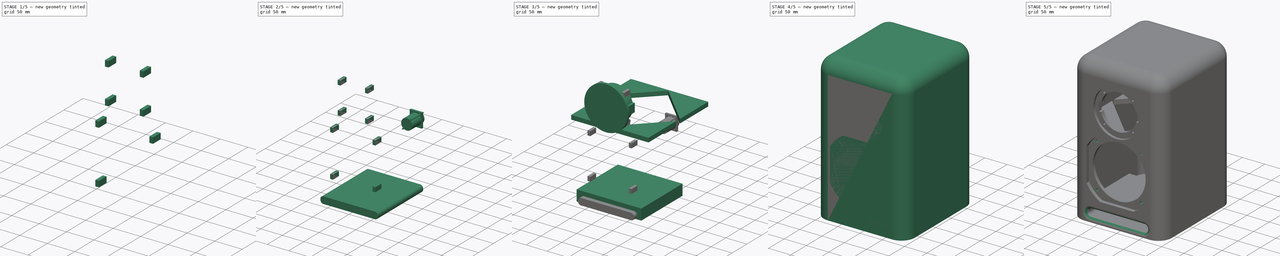
[diagram: build sequence overview — one tinted view per stage of 5, left to right]
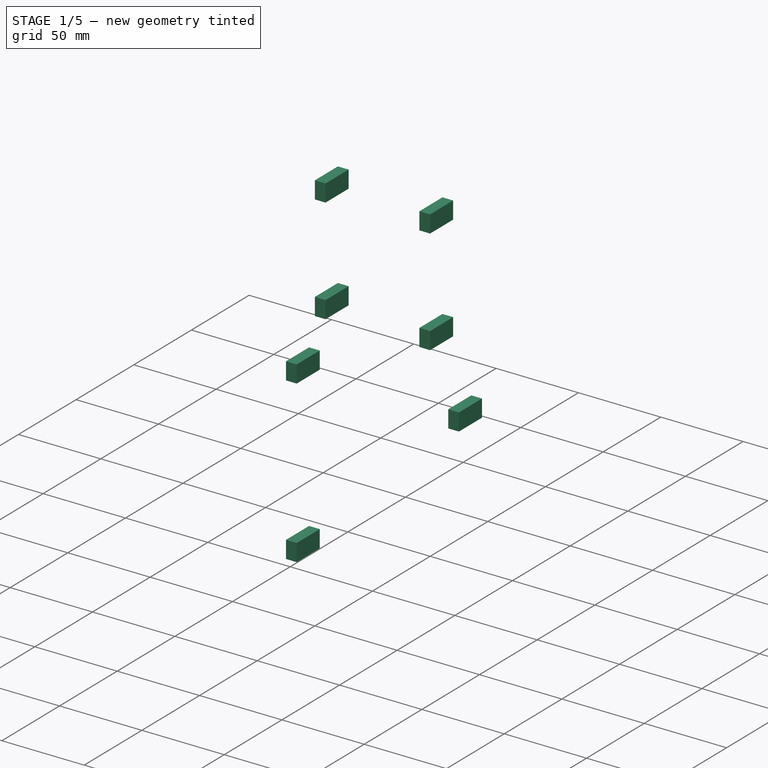
[diagram: stage 1 of 5 — iso view after this stage's code; geometry added in this stage tinted green]
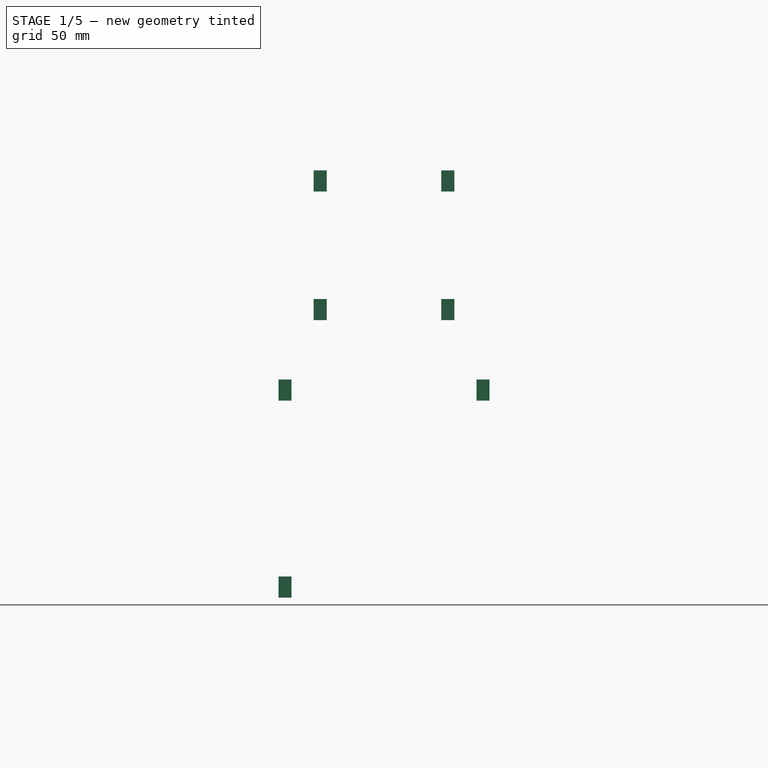
[diagram: stage 1 of 5 — front view after this stage's code; geometry added in this stage tinted green]
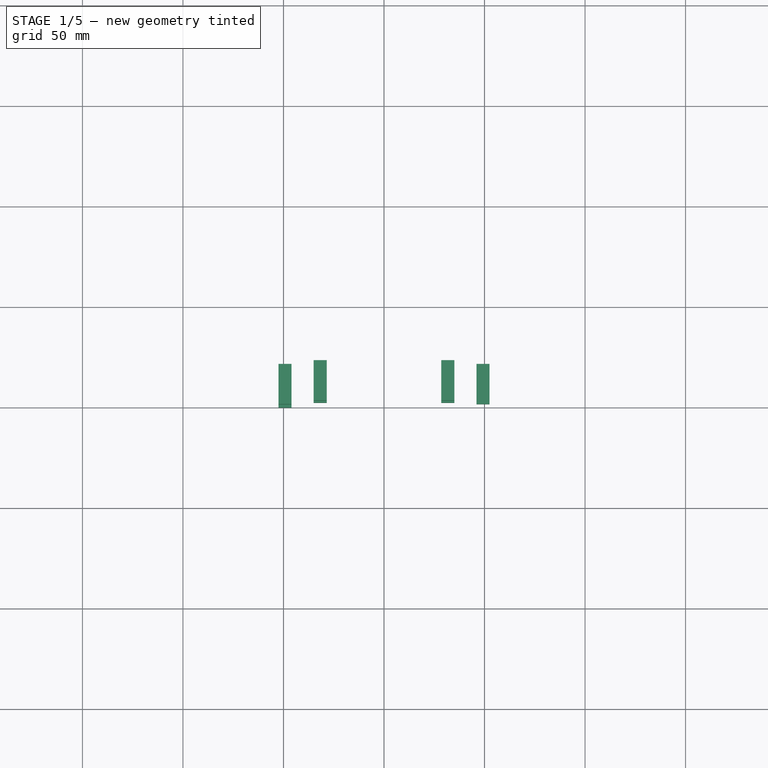
[diagram: stage 1 of 5 — top view after this stage's code; geometry added in this stage tinted green]
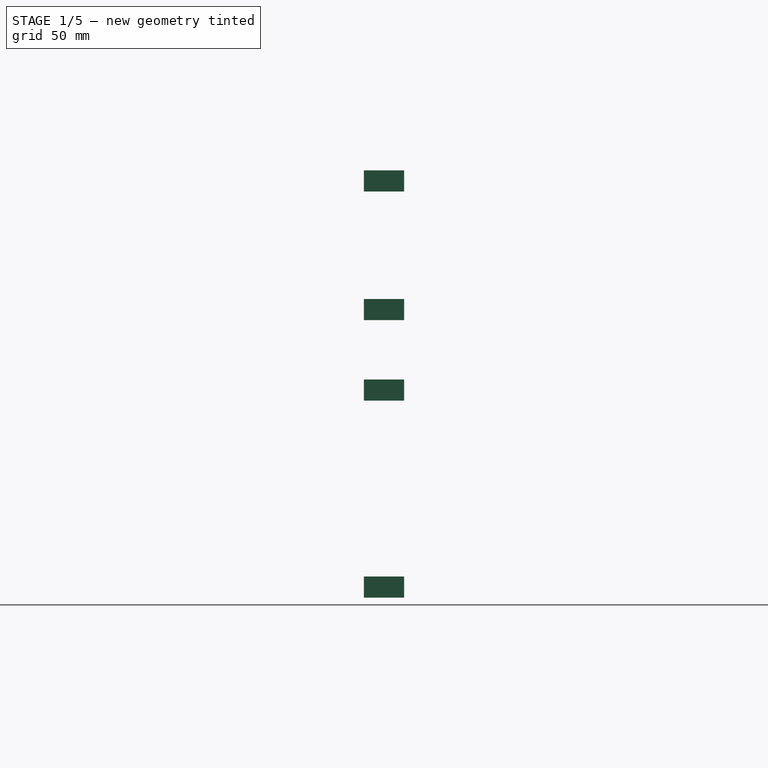
[diagram: stage 1 of 5 — right view after this stage's code; geometry added in this stage tinted green]
FCSTD DOCUMENT  (FreeCAD 0.18R16110 (Git))
Label: SM5-rev1
License: All rights reserved
LicenseURL: http://en.wikipedia.org/wiki/All_rights_reserved
objects: Part::Box×14, Sketcher::SketchObject×8, PartDesign::Pad×6, Part::Cut×6, Part::Fillet×4, Part::MultiFuse×4, PartDesign::Body×2, Part::Extrusion×2
note: 52 computed .brp shape members not serialized (recipe doc carries the construction recipe); baked Part::Feature solids carry a one-line shape summary decoded from their .brp

FEATURE [Part::Box] Box007  label="Cubo005"
  AttacherType = Attacher::AttachEngine3D
  Height = 10.5
  Length = 6.5
  Placement = pos=(46,0,158) rot=(0,0,1;0rad)
  Width = 20
FEATURE [Part::Box] Box008  label="Cubo006"
  AttacherType = Attacher::AttachEngine3D
  Height = 10.5
  Length = 6.5
  Placement = pos=(-52.5,0,60) rot=(0,0,1;0rad)
  Width = 20
FEATURE [Part::Box] Box009  label="Cubo007"
  AttacherType = Attacher::AttachEngine3D
  Height = 10.5
  Length = 6.5
  Placement = pos=(-52.5,0,158) rot=(0,0,1;0rad)
  Width = 20
FEATURE [Part::Box] Box010  label="Cubo008"
  AttacherType = Attacher::AttachEngine3D
  Height = 10.5
  Length = 6.5
  Placement = pos=(28.5,0,198) rot=(0,0,1;0rad)
  Width = 20
FEATURE [Part::Box] Box011  label="Cubo009"
  AttacherType = Attacher::AttachEngine3D
  Height = 10.5
  Length = 6.5
  Placement = pos=(28.5,0,262) rot=(0,0,1;0rad)
  Width = 20
FEATURE [Part::Box] Box012  label="Cubo010"
  AttacherType = Attacher::AttachEngine3D
  Height = 10.5
  Length = 6.5
  Placement = pos=(-35,0,262) rot=(0,0,1;0rad)
  Width = 20
FEATURE [Part::Box] Box013  label="Cubo011"
  AttacherType = Attacher::AttachEngine3D
  Height = 10.5
  Length = 6.5
  Placement = pos=(-35,0,198) rot=(0,0,1;0rad)
  Width = 20
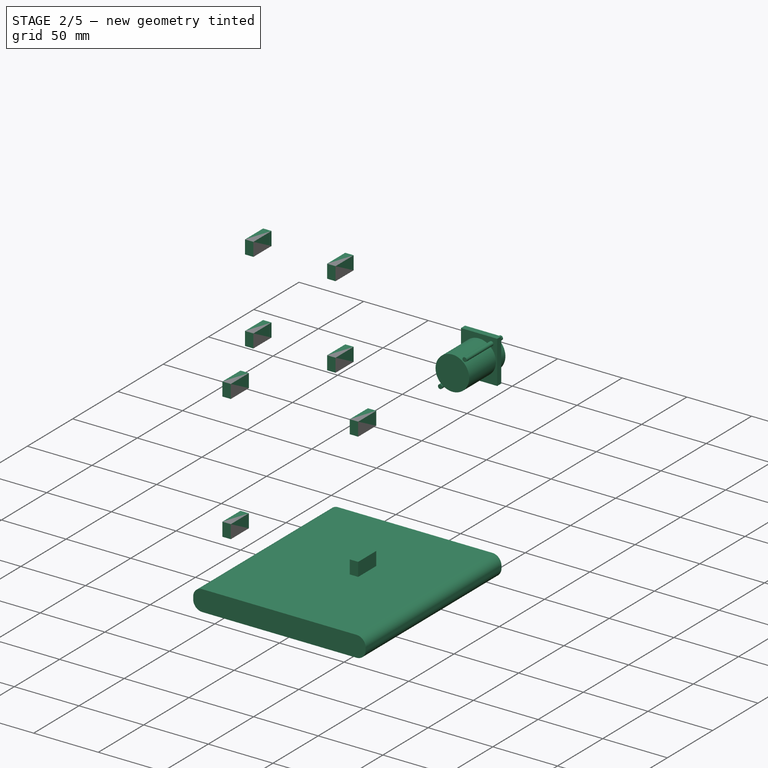
[diagram: stage 2 of 5 — iso view after this stage's code; geometry added in this stage tinted green]
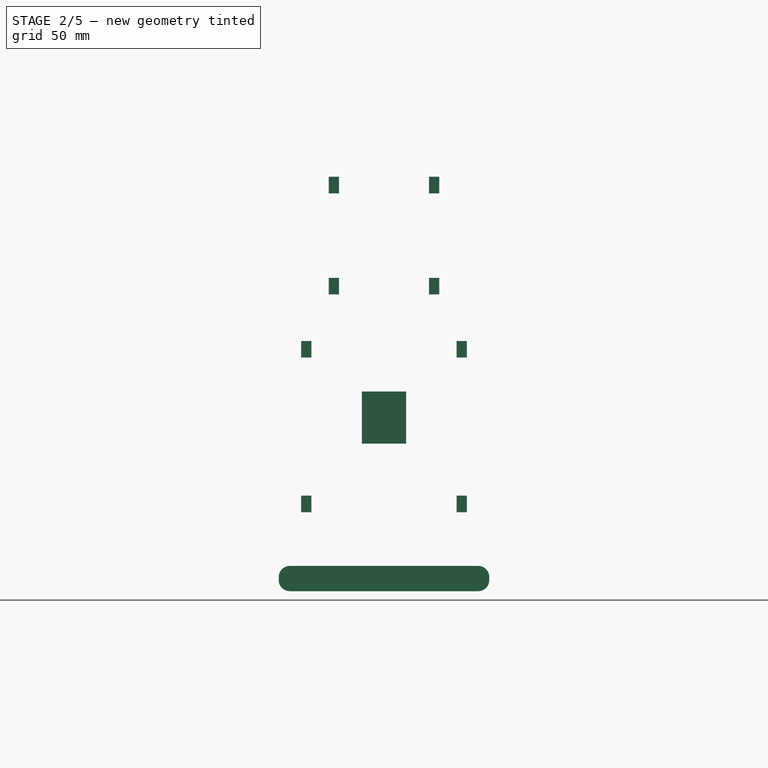
[diagram: stage 2 of 5 — front view after this stage's code; geometry added in this stage tinted green]
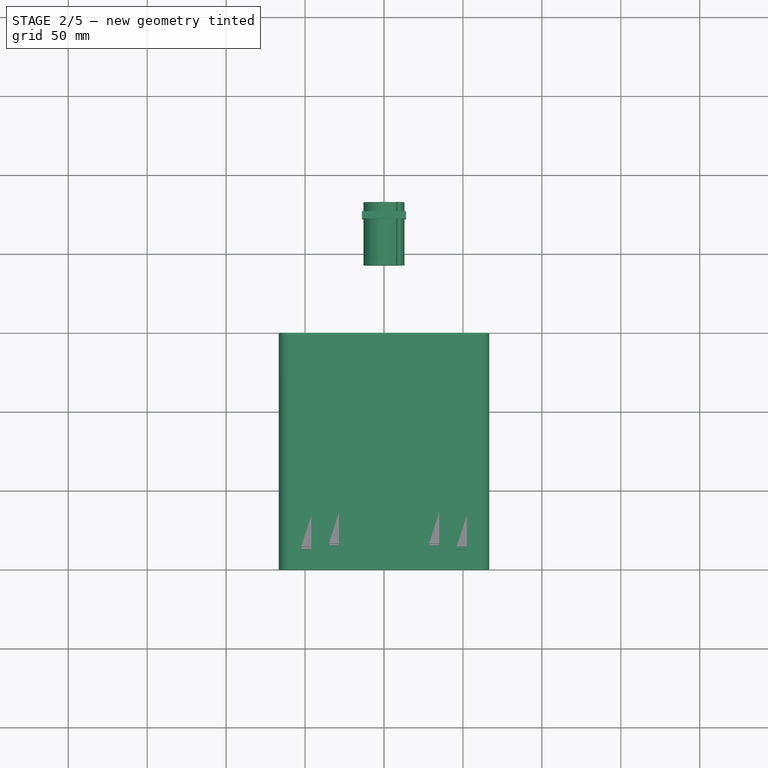
[diagram: stage 2 of 5 — top view after this stage's code; geometry added in this stage tinted green]
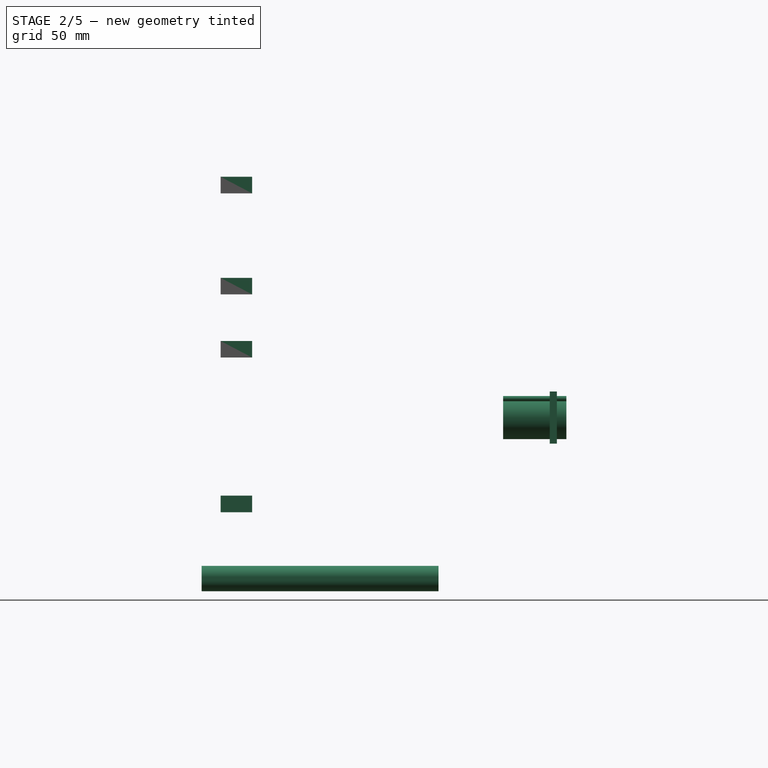
[diagram: stage 2 of 5 — right view after this stage's code; geometry added in this stage tinted green]
FEATURE [Part::Box] Box002  label="AgujeroPuerto"
  AttacherType = Attacher::AttachEngine3D
  Height = 16
  Length = 133.36
  Placement = pos=(-66.68,0,10) rot=(0,0,1;0rad)
  Width = 150
FEATURE [Part::Fillet] Fillet002  label="Agujero puerto"
  Base = -> Box002
  Edges = 4 edges r=7: [Edge2,Edge4,Edge6,Edge8]
FEATURE [Sketcher::SketchObject] Sketch007
  MapMode = 5
  Placement = pos=(0,0,0) rot=(1,0,0;1.5708rad)
  sketch-geometry (3):
    g0: Circle CenterX=0 CenterY=120 CenterZ=0 NormalX=0 NormalY=0 NormalZ=1 AngleXU=0 Radius=13
    g1: Circle CenterX=9.5 CenterY=132 CenterZ=0 NormalX=0 NormalY=0 NormalZ=1 AngleXU=0 Radius=1.65
    g2: Circle CenterX=-9.5 CenterY=108 CenterZ=0 NormalX=0 NormalY=0 NormalZ=1 AngleXU=0 Radius=1.65
  constraints (9):
    c: PointOnObject(g0,g-2)
    c: Diameter(g0) = 26
    c: DistanceY(g-1,g0) = 120
    c: DistanceX(g-2,g1) = 9.5
    c: DistanceX(g-2,g2) = -9.5
    c: DistanceY(g-1,g2) = 108
    c: Equal(g2,g1)
    c: Diameter(g2) = 3.3
    c: DistanceY(g-1,g1) = 132
FEATURE [Part::Extrusion] Extrude
  Base = -> Sketch007
  Dir = (0,-1,2e-16)
  DirMode = 2
  FaceMakerClass = Part::FaceMakerBullseye
  LengthFwd = 40
  LengthRev = 0
  Placement = pos=(0,226,0) rot=(0,0,1;0rad)
  Solid = true
  Symmetric = false
FEATURE [Sketcher::SketchObject] Sketch008
  MapMode = 5
  Placement = pos=(0,0,0) rot=(1,0,0;1.5708rad)
  sketch-geometry (4):
    g0: LineSegment StartX=-14 StartY=136.5 StartZ=0 EndX=14 EndY=136.5 EndZ=0
    g1: LineSegment StartX=14 StartY=136.5 StartZ=0 EndX=14 EndY=103.5 EndZ=0
    g2: LineSegment StartX=14 StartY=103.5 StartZ=0 EndX=-14 EndY=103.5 EndZ=0
    g3: LineSegment StartX=-14 StartY=103.5 StartZ=0 EndX=-14 EndY=136.5 EndZ=0
  constraints (11):
    c: Coincident(g0,g1)
    c: Coincident(g1,g2)
    c: Coincident(g2,g3)
    c: Coincident(g3,g0)
    c: Horizontal(g0)
    c: Vertical(g1)
    c: Vertical(g3)
    c: Symmetric(g2,g1,g-2)
    c: Distance(g1) = 33
    c: Distance(g2) = 28
    c: DistanceY(g-1,g2) = 103.5
FEATURE [Part::Extrusion] Extrude001
  Base = -> Sketch008
  Dir = (0,-1,2e-16)
  DirMode = 2
  FaceMakerClass = Part::FaceMakerBullseye
  LengthFwd = 4.5
  LengthRev = 0
  Placement = pos=(0,220,0) rot=(0,0,1;0rad)
  Solid = true
  Symmetric = false
FEATURE [Part::MultiFuse] Fusion  label="Conector"
  Placement = pos=(0,5,0) rot=(0,0,1;0rad)
  Shapes = -> [Extrude,Extrude001]
FEATURE [Part::Box] Box006  label="Cubo004"
  AttacherType = Attacher::AttachEngine3D
  Height = 10.5
  Length = 6.5
  Placement = pos=(46,0,60) rot=(0,0,1;0rad)
  Width = 20
FEATURE [Part::MultiFuse] Fusion003  label="Tuercas"
  Placement = pos=(0,12,0) rot=(0,0,1;0rad)
  Shapes = -> [Box006,Box008,Box007,Box009,Box010,Box011,Box013,Box012]
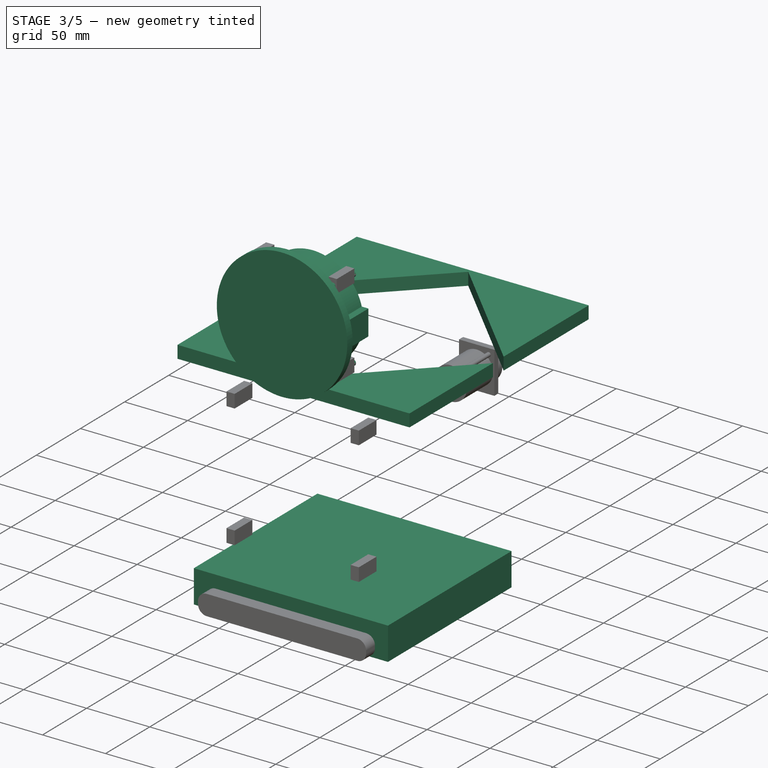
[diagram: stage 3 of 5 — iso view after this stage's code; geometry added in this stage tinted green]
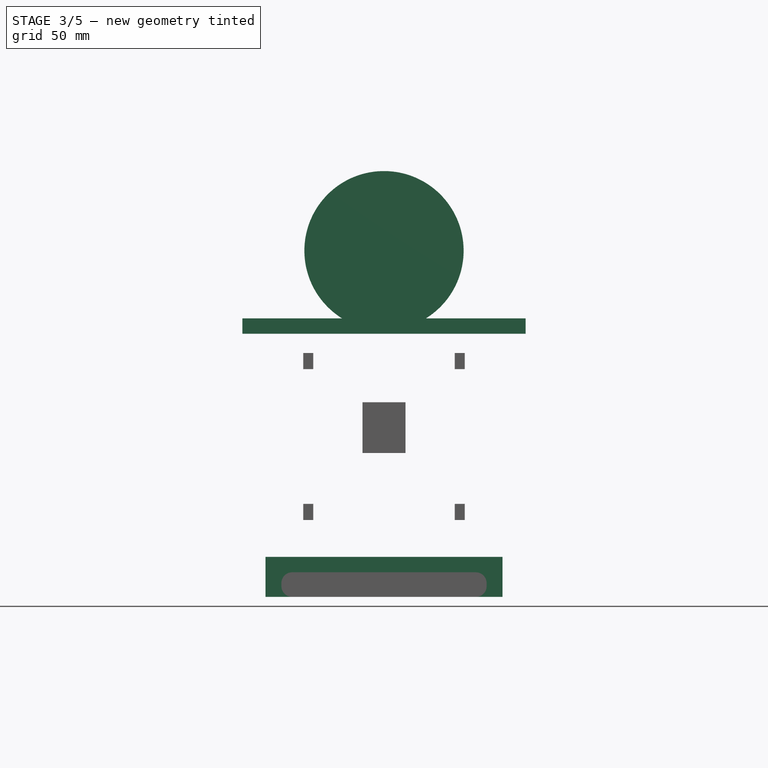
[diagram: stage 3 of 5 — front view after this stage's code; geometry added in this stage tinted green]
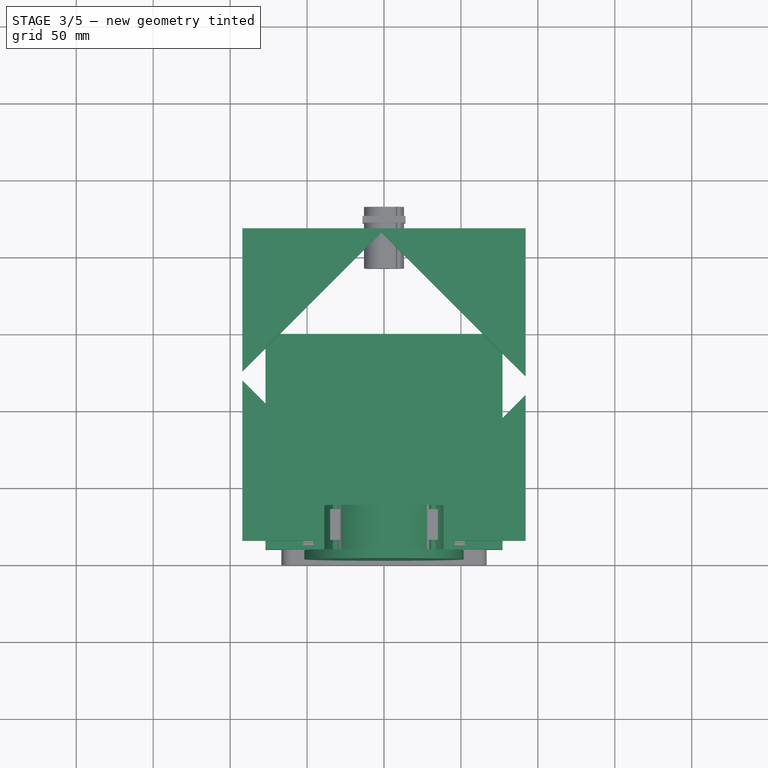
[diagram: stage 3 of 5 — top view after this stage's code; geometry added in this stage tinted green]
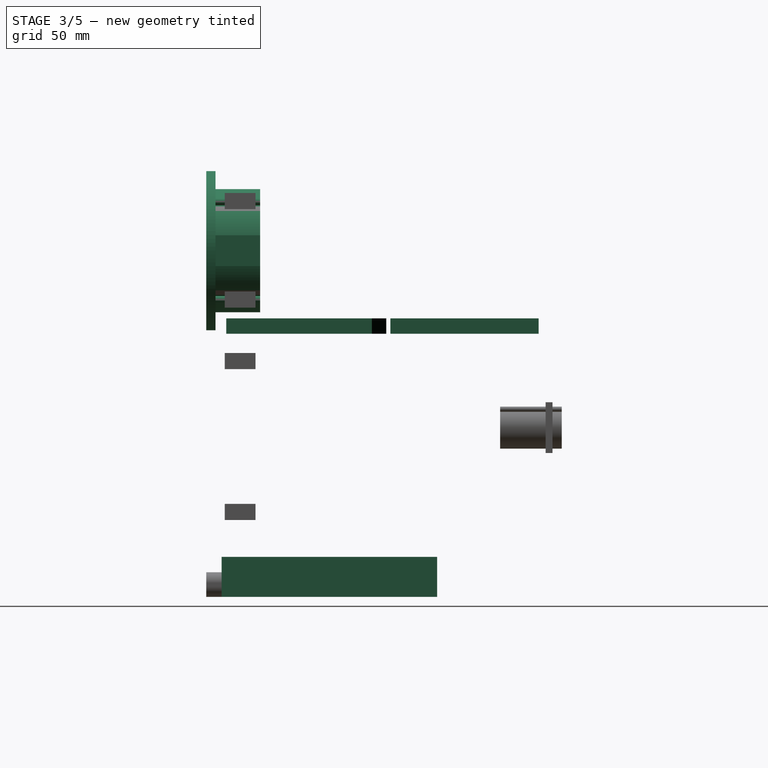
[diagram: stage 3 of 5 — right view after this stage's code; geometry added in this stage tinted green]
FEATURE [Sketcher::SketchObject] Sketch004
  MapMode = 5
  Placement = pos=(0,0,0) rot=(1,0,0;1.5708rad)
  Support = -> [XZ_Plane001]
  sketch-geometry (1):
    g0: Circle CenterX=0 CenterY=235 CenterZ=0 NormalX=0 NormalY=0 NormalZ=1 AngleXU=0 Radius=51.75
  constraints (3):
    c: Diameter(g0) = 103.5
    c: PointOnObject(g0,g-2)
    c: DistanceY(g-1,g0) = 235
FEATURE [PartDesign::Pad] Pad003
  Length = 6
  Length2 = 100
  Placement = pos=(0,0,0) rot=(1,0,0;1.5708rad)
  Profile = -> Sketch004
  Reversed = true
  Type = 0
FEATURE [Sketcher::SketchObject] Sketch005
  MapMode = 5
  Placement = pos=(0,0,0) rot=(1,0,0;1.5708rad)
  Support = -> [XZ_Plane001]
  sketch-geometry (8):
    g0: LineSegment StartX=-38.7298 StartY=225 StartZ=0 EndX=-44 EndY=225 EndZ=0
    g1: LineSegment StartX=-44 StartY=225 StartZ=0 EndX=-44 EndY=245 EndZ=0
    g2: LineSegment StartX=-44 StartY=245 StartZ=0 EndX=-38.7298 EndY=245 EndZ=0
    g3: LineSegment StartX=38.7298 StartY=245 StartZ=0 EndX=44 EndY=245 EndZ=0
    g4: LineSegment StartX=44 StartY=245 StartZ=0 EndX=44 EndY=225 EndZ=0
    g5: LineSegment StartX=44 StartY=225 StartZ=0 EndX=38.7298 EndY=225 EndZ=0
    g6: ArcOfCircle CenterX=0 CenterY=235 CenterZ=0 NormalX=0 NormalY=0 NormalZ=1 AngleXU=0 Radius=40 StartAngle=0.25268 EndAngle=2.88891
    g7: ArcOfCircle CenterX=0 CenterY=235 CenterZ=0 NormalX=0 NormalY=0 NormalZ=1 AngleXU=0 Radius=40 StartAngle=3.39427 EndAngle=6.03051
  constraints (25):
    c: Coincident(g2,g1)
    c: Coincident(g1,g0)
    c: Coincident(g0,g7)
    c: Coincident(g6,g2)
    c: Coincident(g6,g3)
    c: Coincident(g3,g4)
    c: Coincident(g4,g5)
    c: Coincident(g5,g7)
    c: Coincident(g7,g6)
    c: Diameter(g6) = 80
    c: Equal(g7,g6)
    c: Horizontal(g0)
    c: Horizontal(g2)
    c: Horizontal(g3)
    c: Horizontal(g5)
    c: Vertical(g1)
    c: Vertical(g4)
    c: PointOnObject(g6,g-2)
    c: Horizontal(g2,g3)
    c: Horizontal(g0,g5)
    c: Vertical(g2,g0)
    c: Distance(g1) = 20
    c: DistanceY(g-1,g6) = 235
    c: Equal(g2,g3)
    c: Distance(g1,g3) = 88
FEATURE [PartDesign::Pad] Pad004
  BaseFeature = -> Pad003
  Length = 35
  Length2 = 100
  Placement = pos=(0,0,0) rot=(1,0,0;1.5708rad)
  Profile = -> Sketch005
  Reversed = true
  Type = 0
FEATURE [Sketcher::SketchObject] Sketch006
  MapMode = 5
  Placement = pos=(0,0,0) rot=(1,0,0;1.5708rad)
  Support = -> [XZ_Plane001]
  sketch-geometry (4):
    g0: Circle CenterX=-31.82 CenterY=266.819 CenterZ=0 NormalX=0 NormalY=0 NormalZ=1 AngleXU=0 Radius=2.35
    g1: Circle CenterX=31.82 CenterY=266.819 CenterZ=0 NormalX=0 NormalY=0 NormalZ=1 AngleXU=0 Radius=2.35
    g2: Circle CenterX=31.82 CenterY=203.18 CenterZ=0 NormalX=0 NormalY=0 NormalZ=1 AngleXU=0 Radius=2.35
    g3: Circle CenterX=-31.82 CenterY=203.18 CenterZ=0 NormalX=0 NormalY=0 NormalZ=1 AngleXU=0 Radius=2.35
  constraints (11):
    c: Equal(g0,g1)
    c: Equal(g1,g2)
    c: Equal(g2,g3)
    c: Diameter(g1) = 4.7
    c: Horizontal(g0,g1)
    c: Vertical(g1,g2)
    c: Vertical(g0,g3)
    c: Symmetric(g3,g2,g-2)
    c: Distance(g3,g1) = 90
    c: Distance(g3,g2) = 63.64
    c: DistanceY(g-1,g3) = 203.18
FEATURE [PartDesign::Pad] Pad005
  BaseFeature = -> Pad004
  Length = 35
  Length2 = 100
  Placement = pos=(0,0,0) rot=(1,0,0;1.5708rad)
  Profile = -> Sketch006
  Reversed = true
  Type = 0
FEATURE [Part::Box] Box003  label="Puerto"
  AttacherType = Attacher::AttachEngine3D
  Height = 26
  Length = 154
  Placement = pos=(-77,10,10) rot=(0,0,1;0rad)
  Width = 140
FEATURE [Part::Box] Box004  label="Cubo002"
  AttacherType = Attacher::AttachEngine3D
  Height = 10
  Length = 141
  Placement = pos=(-95,120,0) rot=(0,0,-1;0.785398rad)
  Width = 132
FEATURE [Part::Box] Box005  label="Cubo003"
  AttacherType = Attacher::AttachEngine3D
  Height = 10
  Length = 184
  Placement = pos=(-92,13,0) rot=(0,0,1;0rad)
  Width = 203
FEATURE [Part::Cut] Cut003  label="Refuerzo"
  Base = -> Box005
  Placement = pos=(0,0,181) rot=(0,0,1;0rad)
  Tool = -> Box004
FEATURE [Part::MultiFuse] Fusion002
  Shapes = -> [Fillet002,Fusion]
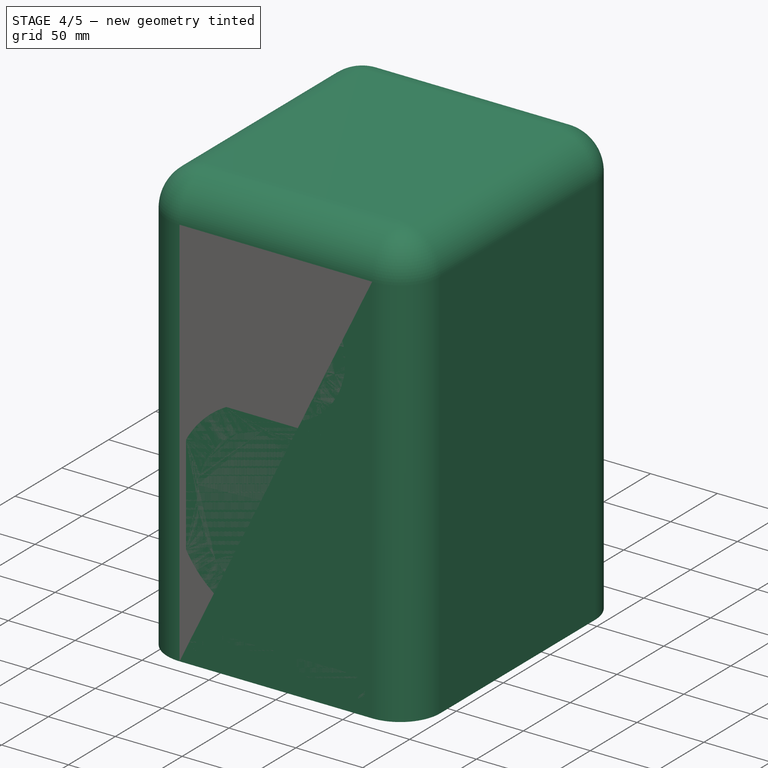
[diagram: stage 4 of 5 — iso view after this stage's code; geometry added in this stage tinted green]
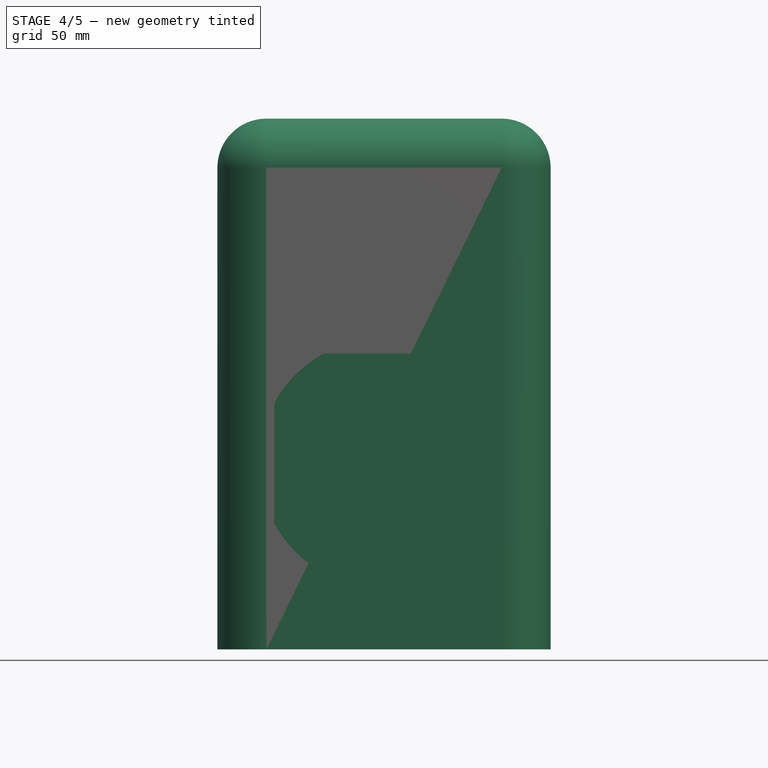
[diagram: stage 4 of 5 — front view after this stage's code; geometry added in this stage tinted green]
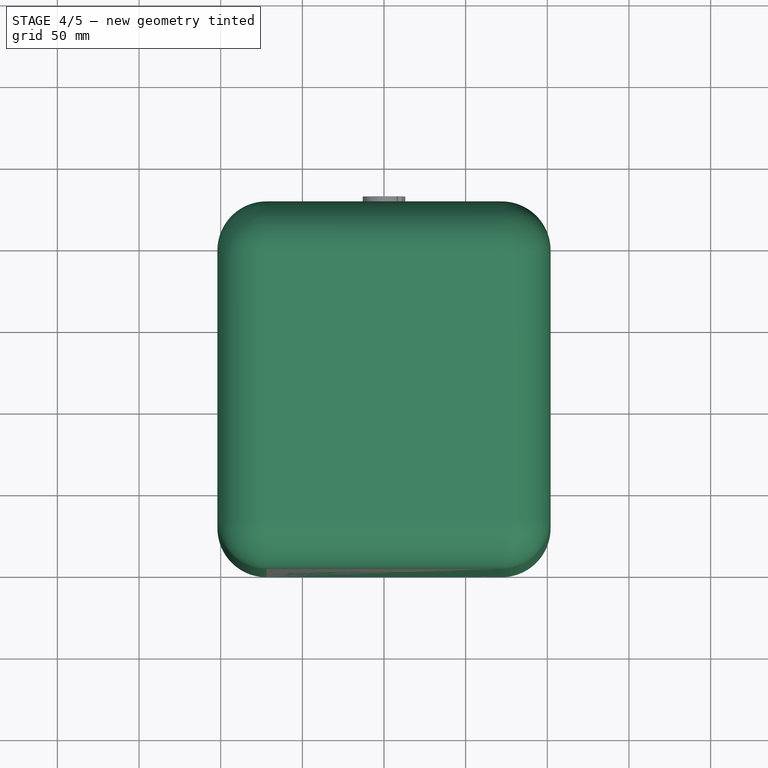
[diagram: stage 4 of 5 — top view after this stage's code; geometry added in this stage tinted green]
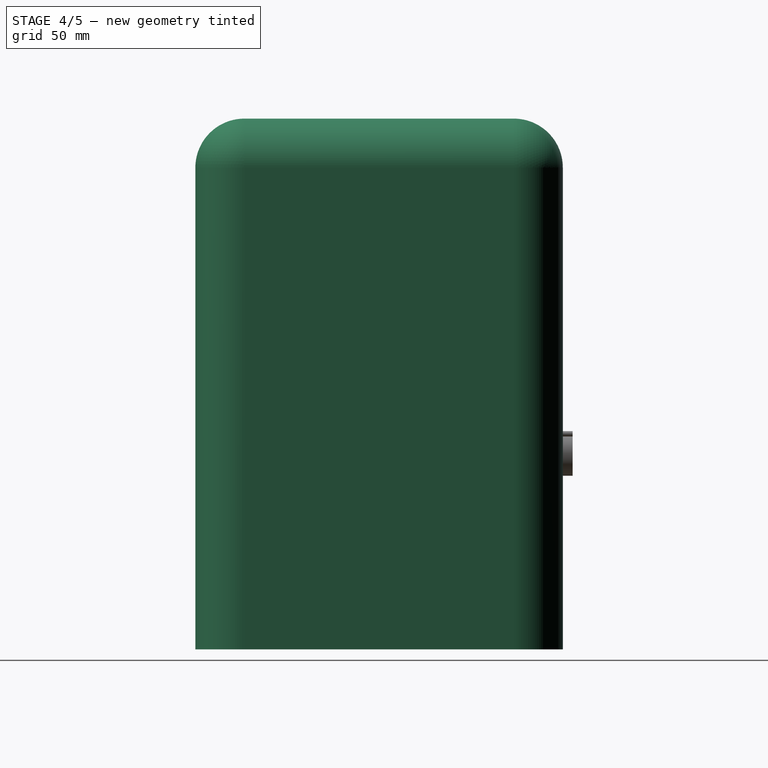
[diagram: stage 4 of 5 — right view after this stage's code; geometry added in this stage tinted green]
FEATURE [Part::Box] Box  label="Cubo"
  AttacherType = Attacher::AttachEngine3D
  Height = 305
  Length = 184
  Placement = pos=(-92,15,10) rot=(0,0,1;0rad)
  Width = 200
FEATURE [Part::Fillet] Fillet  label="Volumen interior"
  Base = -> Box
  Edges = 8 edges r=20: [Edge1,Edge2,Edge3,Edge5,Edge6,Edge7,Edge10,Edge12]
FEATURE [Part::Box] Box001  label="Cubo001"
  AttacherType = Attacher::AttachEngine3D
  Height = 325
  Length = 204
  Placement = pos=(-102,0,0) rot=(0,0,1;0rad)
  Width = 225
FEATURE [Part::Fillet] Fillet001  label="Volumen exterior"
  Base = -> Box001
  Edges = 8 edges r=30: [Edge1,Edge2,Edge3,Edge5,Edge6,Edge7,Edge10,Edge12]
FEATURE [Sketcher::SketchObject] Sketch
  MapMode = 5
  Placement = pos=(0,0,0) rot=(1,0,0;1.5708rad)
  Support = -> [XZ_Plane]
  sketch-geometry (8):
    g0: LineSegment StartX=-37.019 StartY=181.175 StartZ=0 EndX=37.019 EndY=181.175 EndZ=0
    g1: LineSegment StartX=67.175 StartY=151.019 StartZ=0 EndX=67.175 EndY=76.981 EndZ=0
    g2: LineSegment StartX=37.019 StartY=46.825 StartZ=0 EndX=-37.019 EndY=46.825 EndZ=0
    g3: LineSegment StartX=-67.175 StartY=76.981 StartZ=0 EndX=-67.175 EndY=151.019 EndZ=0
    g4: ArcOfCircle CenterX=4.4e-15 CenterY=114 CenterZ=0 NormalX=0 NormalY=0 NormalZ=1 AngleXU=0 Radius=76.7 StartAngle=2.07447 EndAngle=2.63792
    g5: ArcOfCircle CenterX=4.4e-15 CenterY=114 CenterZ=0 NormalX=0 NormalY=0 NormalZ=1 AngleXU=0 Radius=76.7 StartAngle=0.503675 EndAngle=1.06712
    g6: ArcOfCircle CenterX=4.4e-15 CenterY=114 CenterZ=0 NormalX=0 NormalY=0 NormalZ=1 AngleXU=0 Radius=76.7 StartAngle=5.21606 EndAngle=5.77951
    g7: ArcOfCircle CenterX=4.4e-15 CenterY=114 CenterZ=0 NormalX=0 NormalY=0 NormalZ=1 AngleXU=0 Radius=76.7 StartAngle=3.64527 EndAngle=4.20871
  constraints (22):
    c: Coincident(g3,g7)
    c: Coincident(g7,g2)
    c: Coincident(g6,g2)
    c: Coincident(g1,g6)
    c: Coincident(g1,g5)
    c: Coincident(g5,g0)
    c: Coincident(g0,g4)
    c: Coincident(g3,g4)
    c: Diameter(g4) = 153.4
    c: Equal(g5,g6)
    c: Vertical(g1)
    c: Symmetric(g1,g3,g-2)
    c: Equal(g0,g2)
    c: Equal(g2,g1)
    c: Equal(g1,g3)
    c: Symmetric(g0,g0,g-2)
    c: Symmetric(g2,g2,g-2)
    c: Distance(g0,g2) = 134.35
    c: Coincident(g5,g6)
    c: Coincident(g5,g7)
    c: Coincident(g5,g4)
    c: DistanceY(g-1,g4) = 114
FEATURE [PartDesign::Pad] Pad
  Length = 7.9
  Length2 = 100
  Placement = pos=(0,0,0) rot=(1,0,0;1.5708rad)
  Profile = -> Sketch
  Reversed = true
  Type = 0
FEATURE [Sketcher::SketchObject] Sketch002
  MapMode = 5
  Placement = pos=(0,0,0) rot=(1,0,0;1.5708rad)
  Support = -> [XZ_Plane]
  sketch-geometry (1):
    g0: Circle CenterX=0 CenterY=114 CenterZ=0 NormalX=0 NormalY=0 NormalZ=1 AngleXU=0 Radius=59
  constraints (3):
    c: PointOnObject(g0,g-2)
    c: Diameter(g0) = 118
    c: DistanceY(g-1,g0) = 114
FEATURE [PartDesign::Pad] Pad001
  BaseFeature = -> Pad
  Length = 25
  Length2 = 100
  Placement = pos=(0,0,0) rot=(1,0,0;1.5708rad)
  Profile = -> Sketch002
  Reversed = true
  Type = 0
FEATURE [PartDesign::Body] Body  label="Woofer"
  Group = -> [Sketch,Pad,Sketch002,Pad001,Sketch003,Pad002]
  Origin = -> Origin
  Tip = -> Pad002
FEATURE [Part::Cut] Cut  label="caja-caja"
  Base = -> Fillet001
  Tool = -> Fillet
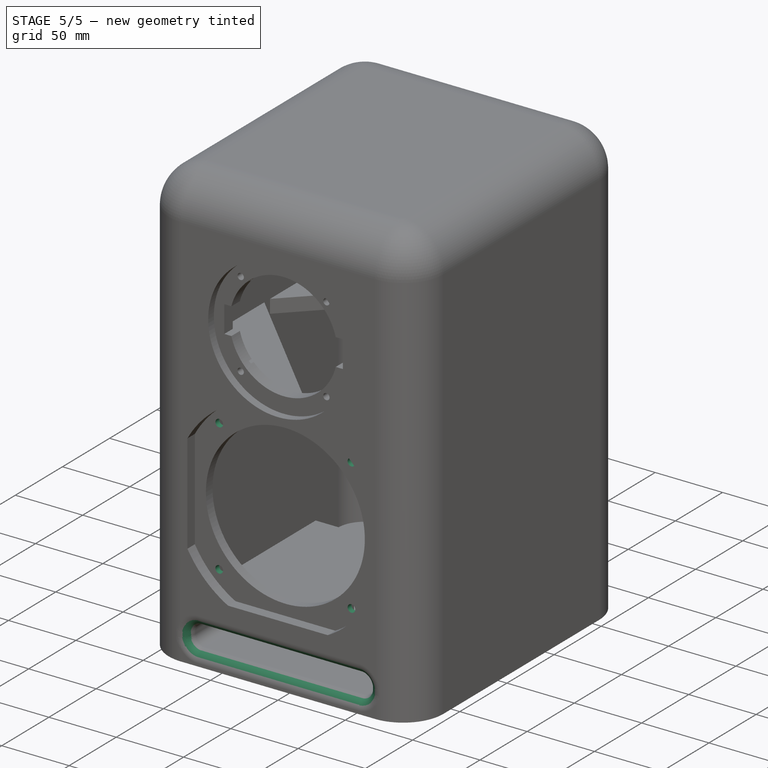
[diagram: stage 5 of 5 — iso view after this stage's code; geometry added in this stage tinted green]
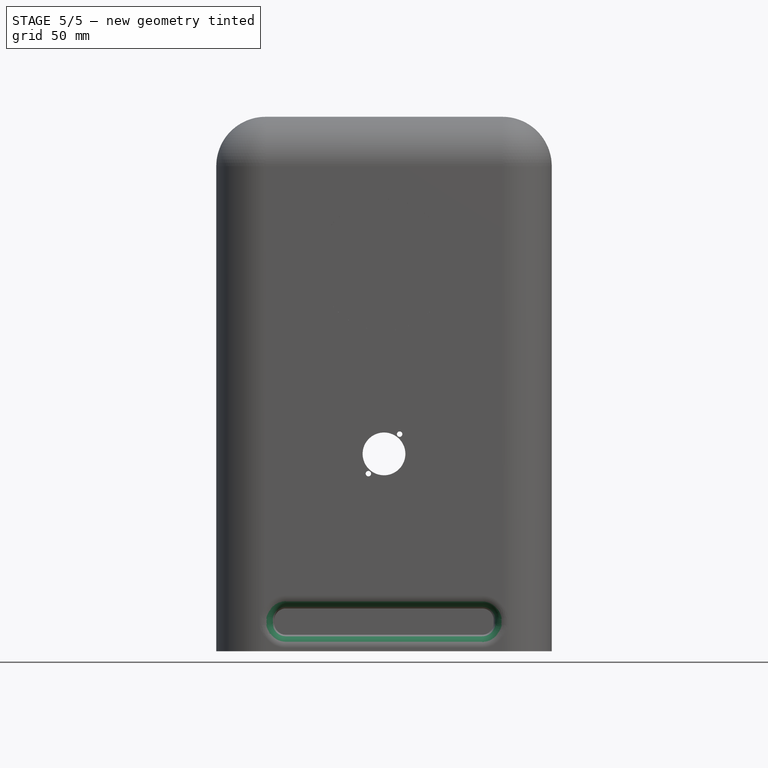
[diagram: stage 5 of 5 — front view after this stage's code; geometry added in this stage tinted green]
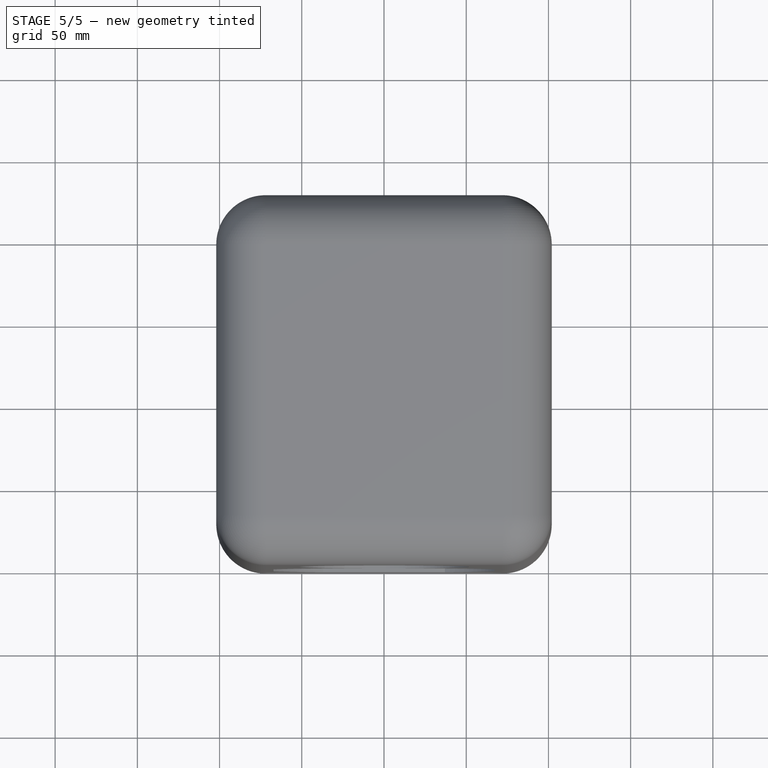
[diagram: stage 5 of 5 — top view after this stage's code; geometry added in this stage tinted green]
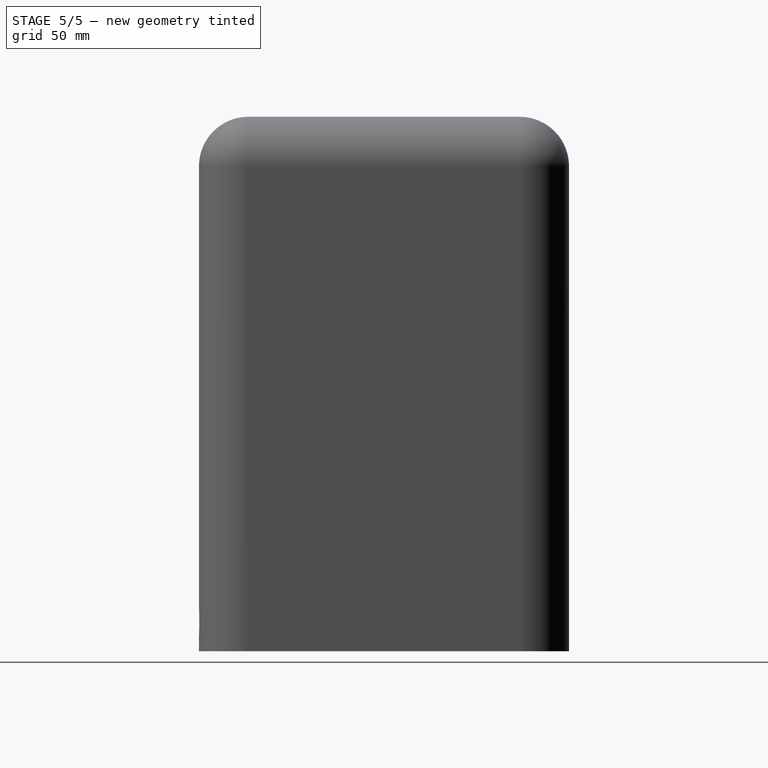
[diagram: stage 5 of 5 — right view after this stage's code; geometry added in this stage tinted green]
FEATURE [Sketcher::SketchObject] Sketch003
  MapMode = 5
  Placement = pos=(0,0,0) rot=(1,0,0;1.5708rad)
  Support = -> [XZ_Plane]
  sketch-geometry (4):
    g0: Circle CenterX=-49.0732 CenterY=163.07 CenterZ=0 NormalX=0 NormalY=0 NormalZ=1 AngleXU=0 Radius=2.85
    g1: Circle CenterX=49.0732 CenterY=163.07 CenterZ=0 NormalX=0 NormalY=0 NormalZ=1 AngleXU=0 Radius=2.85
    g2: Circle CenterX=49.0732 CenterY=64.93 CenterZ=0 NormalX=0 NormalY=0 NormalZ=1 AngleXU=0 Radius=2.85
    g3: Circle CenterX=-49.0732 CenterY=64.93 CenterZ=0 NormalX=0 NormalY=0 NormalZ=1 AngleXU=0 Radius=2.85
  constraints (10):
    c: Symmetric(g0,g1,g-2)
    c: Symmetric(g2,g3,g-2)
    c: Equal(g1,g2)
    c: Equal(g2,g3)
    c: Equal(g3,g0)
    c: Diameter(g1) = 5.7
    c: Vertical(g0,g3)
    c: Distance(g1,g-2) = 49.0732
    c: DistanceY(g-1,g3) = 64.93
    c: Distance(g0,g3) = 98.14
FEATURE [PartDesign::Pad] Pad002
  BaseFeature = -> Pad001
  Length = 34
  Length2 = 100
  Placement = pos=(0,0,0) rot=(1,0,0;1.5708rad)
  Profile = -> Sketch003
  Reversed = true
  Type = 0
FEATURE [Part::Cut] Cut001  label="-altavoz"
  Base = -> Cut
  Tool = -> Body
FEATURE [PartDesign::Body] Body001  label="Tweeter"
  Group = -> [Sketch004,Pad003,Sketch005,Pad004,Sketch006,Pad005]
  Origin = -> Origin001
  Tip = -> Pad005
FEATURE [Part::Cut] Cut002
  Base = -> Cut001
  Tool = -> Body001
FEATURE [Part::MultiFuse] Fusion001
  Shapes = -> [Cut003,Box003,Cut002]
FEATURE [Part::Cut] Cut004
  Base = -> Fusion001
  Tool = -> Fusion002
FEATURE [Part::Cut] Cut005
  Base = -> Cut004
  Tool = -> Fusion003
FEATURE [Part::Fillet] Fillet003
  Base = -> Cut005
  Edges = 2 edges r=8: [Edge62,Edge97]
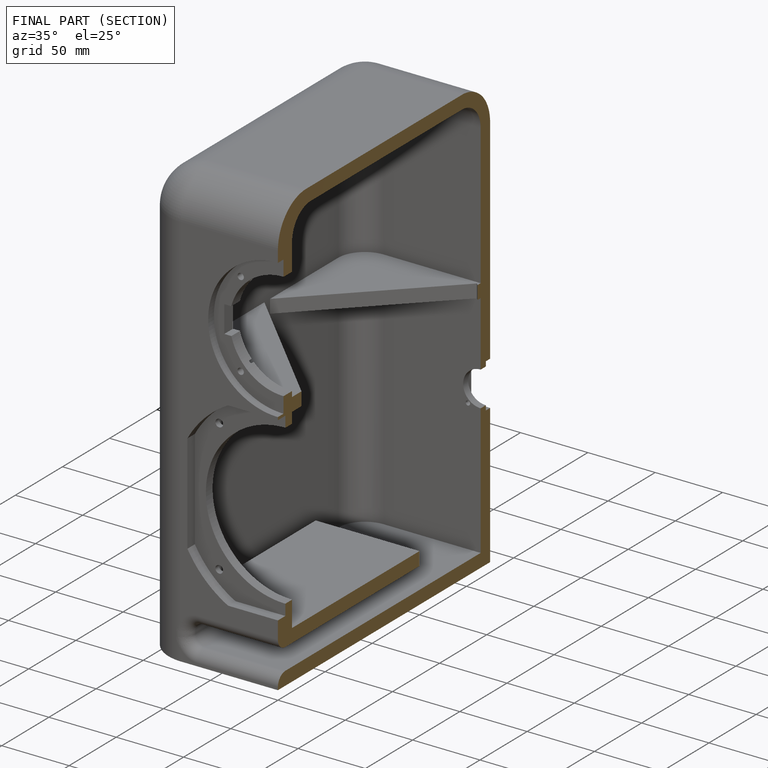
[diagram: finished part — half-section view (interior)]
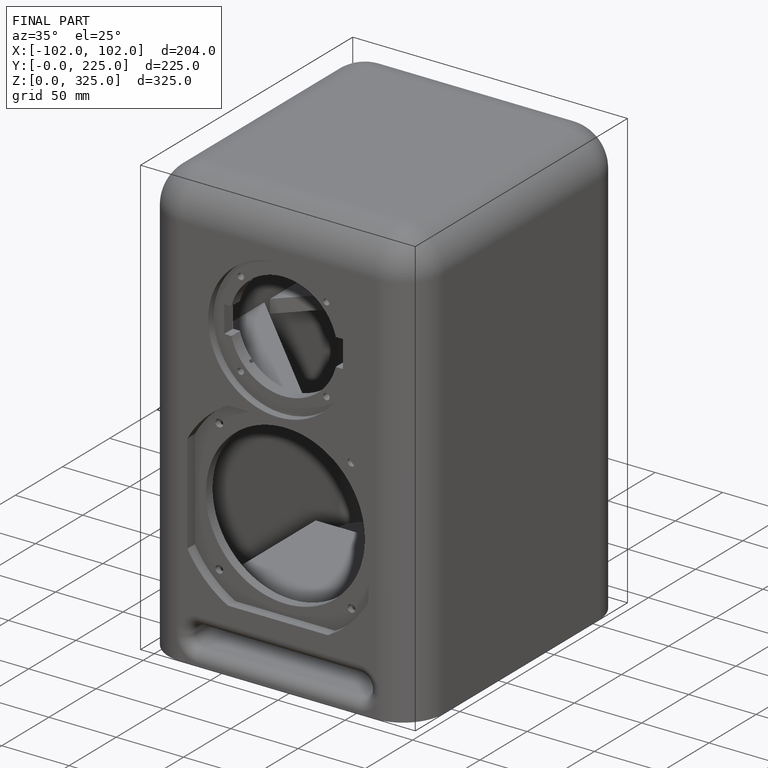
[diagram: finished part — iso view with bounding-box wireframe]
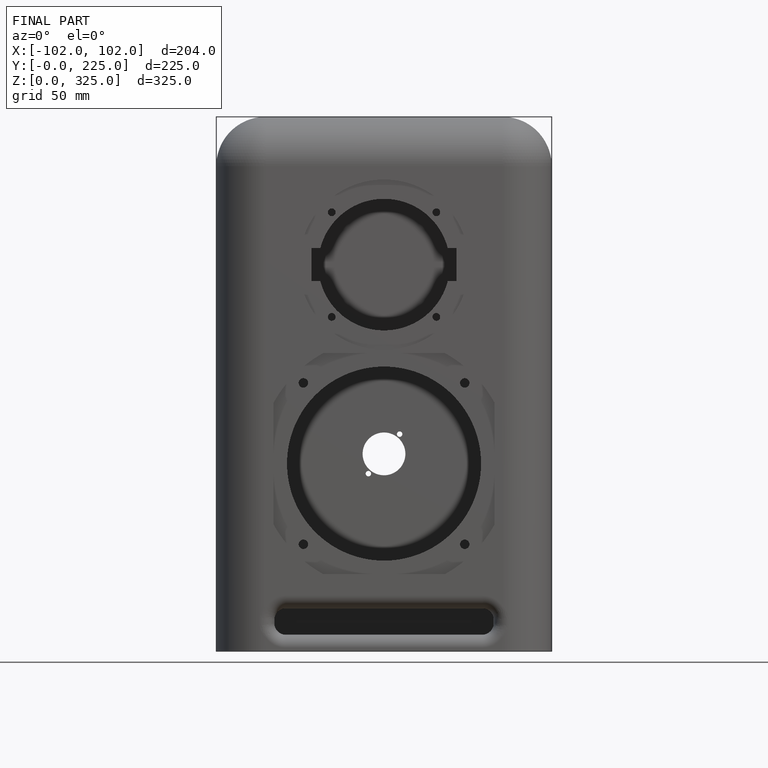
[diagram: finished part — front view with bounding-box wireframe]
